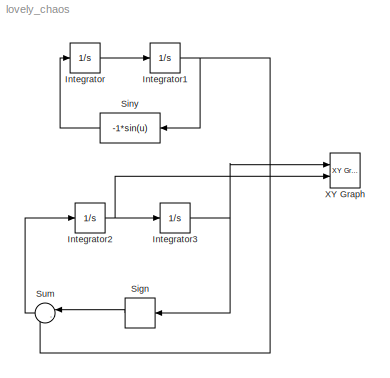
MODEL lovely_chaos
KIND model
BLOCK [Integrator] Integrator
  InitialCondition = 1.9
  Ports = [1, 1]
  SID = 1
BLOCK [Integrator] Integrator1
  Ports = [1, 1]
  SID = 2
BLOCK [Integrator] Integrator2
  Ports = [1, 1]
  SID = 3
BLOCK [Integrator] Integrator3
  InitialCondition = 0.01
  Ports = [1, 1]
  SID = 4
BLOCK [Signum] Sign
  SID = 5
BLOCK [Fcn] Siny
  Expr = -1*sin(u)
  SID = 6
BLOCK [Sum] Sum
  IconShape = round
  InputSameDT = off
  Inputs = |-+
  OutDataTypeStr = Inherit: Inherit via internal rule
  Ports = [2, 1]
  SID = 7
  SaturateOnIntegerOverflow = off
BLOCK [Reference] XY Graph  REF=simulink/Sinks/XY Graph
  Ports = [2]
  SID = 8
  SourceBlock = simulink/Sinks/XY Graph
  SourceType = XY scope.
  st = -1
  xmax = 25
  xmin = -25
  ymax = 7
  ymin = -10
NET Integrator1:1 -> Siny:1, Sum:2
NET Integrator2:1 -> Integrator3:1, XY Graph:2
NET Integrator3:1 -> Sign:1, XY Graph:1
LINE Integrator:1 -> Integrator1:1
LINE Sign:1 -> Sum:1
LINE Siny:1 -> Integrator:1
LINE Sum:1 -> Integrator2:1
note: NET lines group one-source signal fan-out (src -> all destinations, sorted); 1:1 wires keep LINE
